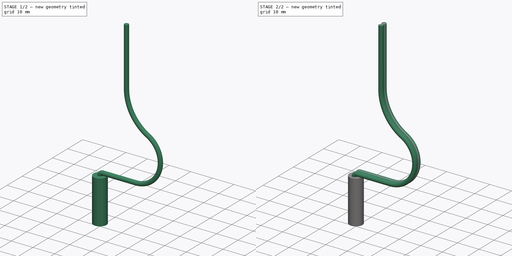
[diagram: build sequence overview — one tinted view per stage of 2, left to right]
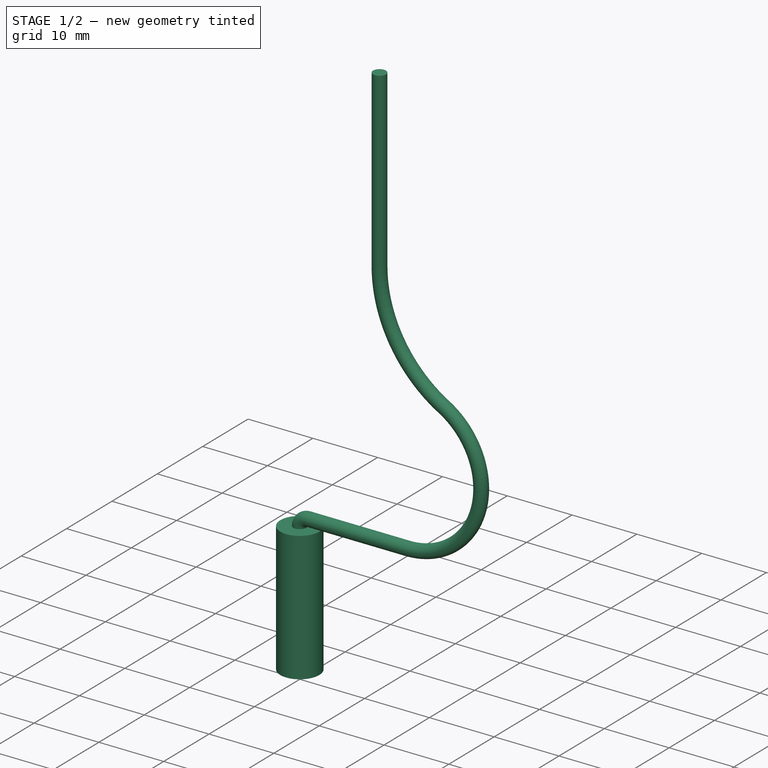
[diagram: stage 1 of 2 — iso view after this stage's code; geometry added in this stage tinted green]
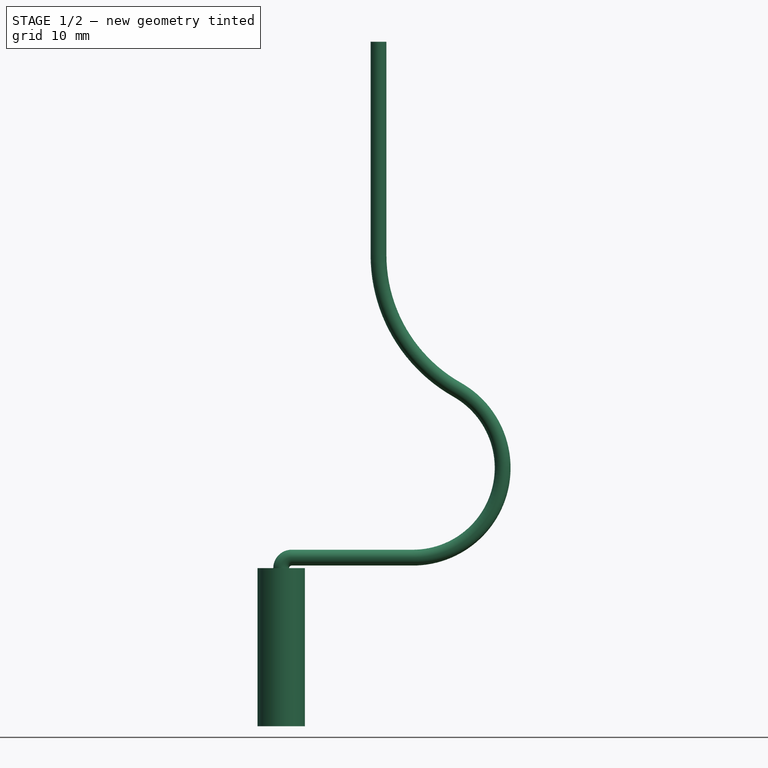
[diagram: stage 1 of 2 — front view after this stage's code; geometry added in this stage tinted green]
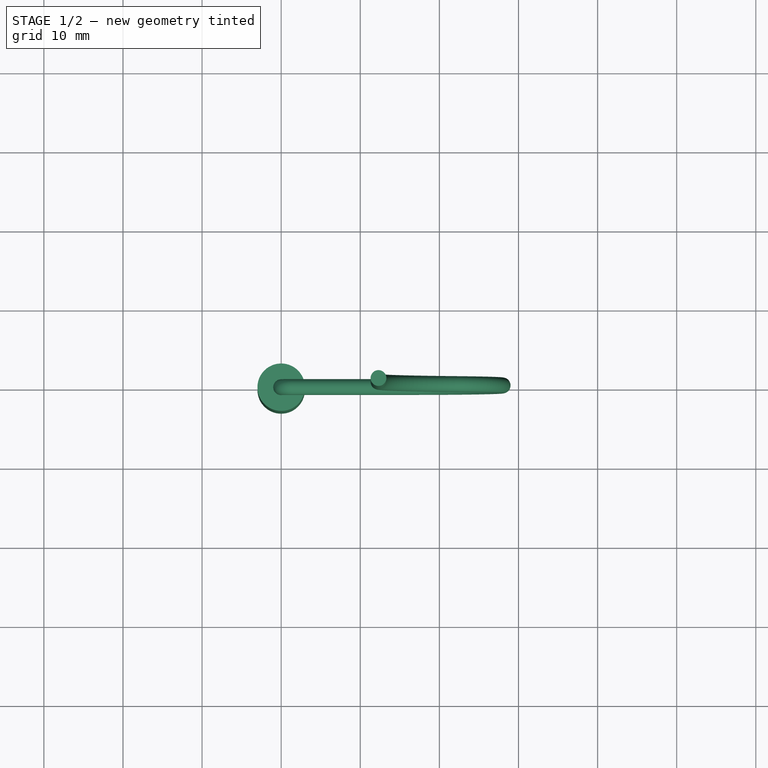
[diagram: stage 1 of 2 — top view after this stage's code; geometry added in this stage tinted green]
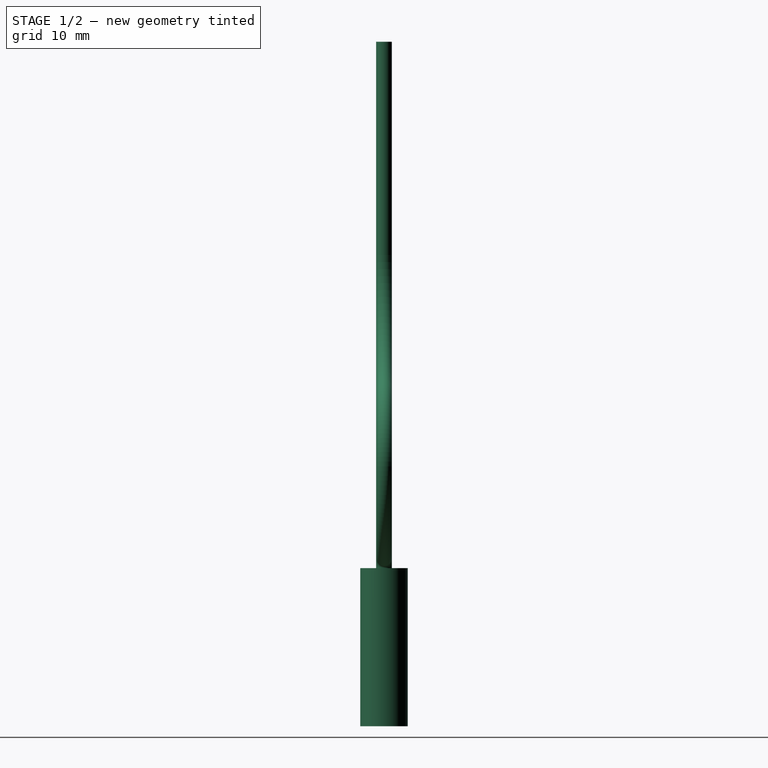
[diagram: stage 1 of 2 — right view after this stage's code; geometry added in this stage tinted green]
FCSTD DOCUMENT  (FreeCAD 0.19R24267 (Git))
Label: heater_cartridge
License: All rights reserved
LicenseURL: http://en.wikipedia.org/wiki/All_rights_reserved
objects: Sketcher::SketchObject×5, PartDesign::Body×3, PartDesign::AdditivePipe×2, PartDesign::Pad×1, PartDesign::Boolean×1, PartDesign::CoordinateSystem×1, App::Part×1
note: 16 computed .brp shape members not serialized (recipe doc carries the construction recipe); baked Part::Feature solids carry a one-line shape summary decoded from their .brp

FEATURE [PartDesign::Body] Body033  label="Body034"
  Group = -> [Sketch087,Sketch088,AdditivePipe003]
  Origin = -> Origin101
  Placement = pos=(0,0.99,0) rot=(0,0,1;0rad)
  Tip = -> AdditivePipe003
FEATURE [Sketcher::SketchObject] Sketch089
  FullyConstrained = false
  MapMode = 5
  Support = -> [XY_Plane102]
  sketch-geometry (1):
    g0: Circle CenterX=0 CenterY=0 CenterZ=0 NormalX=0 NormalY=0 NormalZ=1 AngleXU=0 Radius=1
  constraints (2):
    c: Coincident(g0,g-1)
    c: Diameter(g0) = 2
FEATURE [Sketcher::SketchObject] Sketch090
  FullyConstrained = false
  MapMode = 5
  Placement = pos=(0,0,0) rot=(1,0,0;1.5708rad)
  Support = -> [XZ_Plane102]
  sketch-geometry (5):
    g0: ArcOfCircle CenterX=1.32205 CenterY=0 CenterZ=0 NormalX=0 NormalY=0 NormalZ=1 AngleXU=0 Radius=1.32205 StartAngle=1.5708 EndAngle=3.14159
    g1: LineSegment StartX=1.32205 StartY=1.32205 StartZ=0 EndX=16.6441 EndY=1.32205 EndZ=0
    g2: ArcOfCircle CenterX=16.6441 CenterY=12.6746 CenterZ=0 NormalX=0 NormalY=0 NormalZ=1 AngleXU=0 Radius=11.3525 StartAngle=4.71239 EndAngle=7.33941
    g3: ArcOfCircle CenterX=31.8557 CenterY=39.5797 CenterZ=0 NormalX=0 NormalY=0 NormalZ=1 AngleXU=0 Radius=19.555 StartAngle=3.14159 EndAngle=4.19782
    g4: LineSegment StartX=12.3007 StartY=39.5797 StartZ=0 EndX=12.3007 EndY=66.5454 EndZ=0
  constraints (8):
    c: PointOnObject(g0,g-1)
    c: Coincident(g0,g-1)
    c: Horizontal(g1)
    c: Vertical(g4)
    c: Tangent(g3,g2) = 1.5708
    c: Tangent(g2,g1) = -1.5708
    c: Tangent(g1,g0) = 1.5708
    c: Tangent(g4,g3) = 1.5708
FEATURE [PartDesign::AdditivePipe] AdditivePipe004
  AuxilleryCurvelinear = true
  AuxillerySpineTangent = false
  Binormal = (0,0,0)
  Mode = 2
  Profile = -> Sketch089
  Spine = -> Sketch090
  SpineTangent = false
  Transformation = 0
  Transition = 0
FEATURE [PartDesign::Body] Body034  label="Body035"
  Group = -> [Sketch090,Sketch089,AdditivePipe004]
  Origin = -> Origin102
  Placement = pos=(0,-1.02,0) rot=(0,0,1;0rad)
  Tip = -> AdditivePipe004
FEATURE [Sketcher::SketchObject] Sketch
  FullyConstrained = false
  MapMode = 5
  Support = -> [XY_Plane]
  sketch-geometry (1):
    g0: Circle CenterX=0 CenterY=0 CenterZ=0 NormalX=0 NormalY=0 NormalZ=1 AngleXU=0 Radius=3
  constraints (2):
    c: Coincident(g0,g-1)
    c: Diameter(g0) = 6
FEATURE [PartDesign::Pad] Pad
  Direction = (1,1,1)
  Length = 20
  Length2 = 100
  Profile = -> Sketch
  Reversed = true
  Type = 0
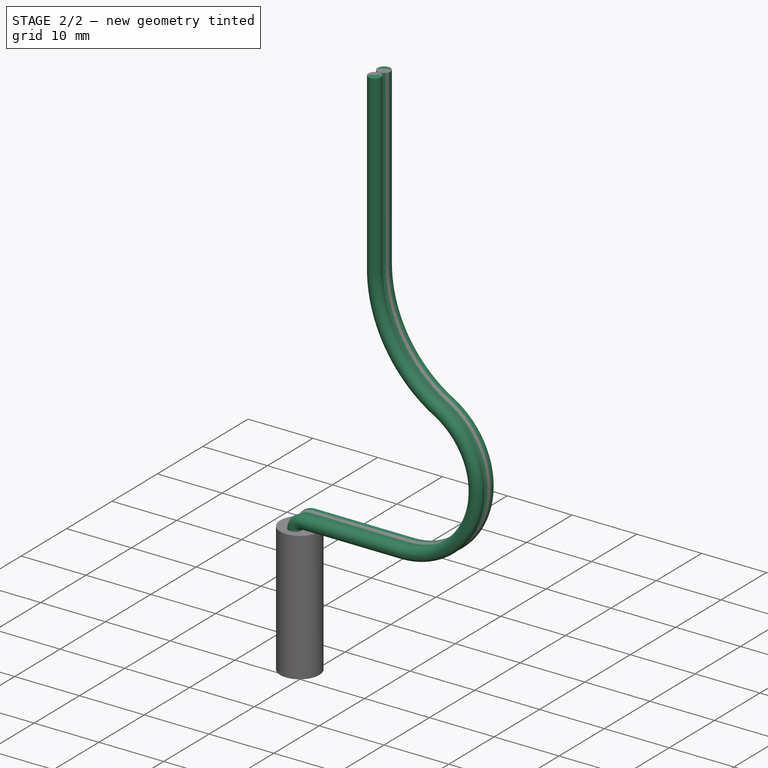
[diagram: stage 2 of 2 — iso view after this stage's code; geometry added in this stage tinted green]
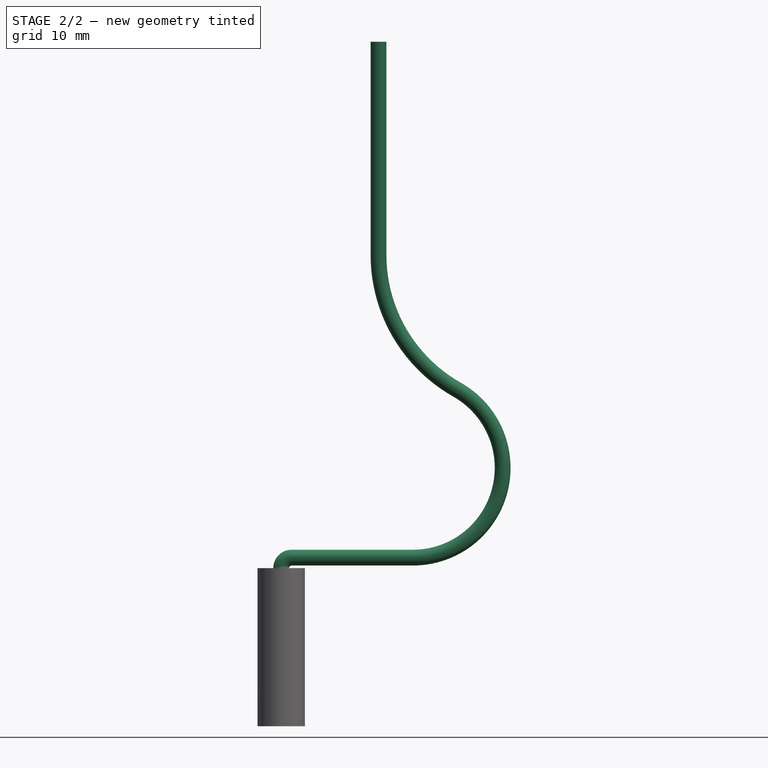
[diagram: stage 2 of 2 — front view after this stage's code; geometry added in this stage tinted green]
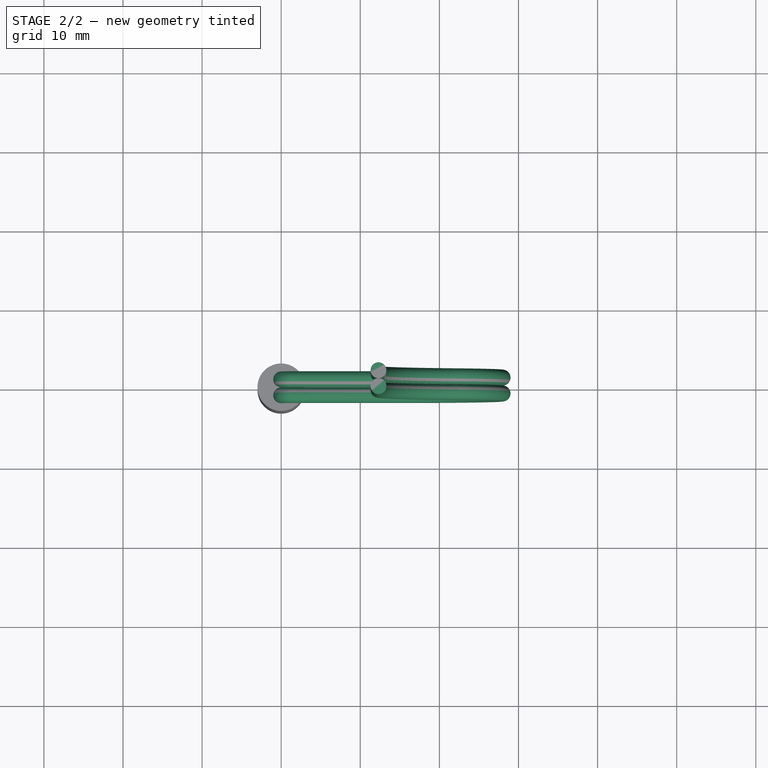
[diagram: stage 2 of 2 — top view after this stage's code; geometry added in this stage tinted green]
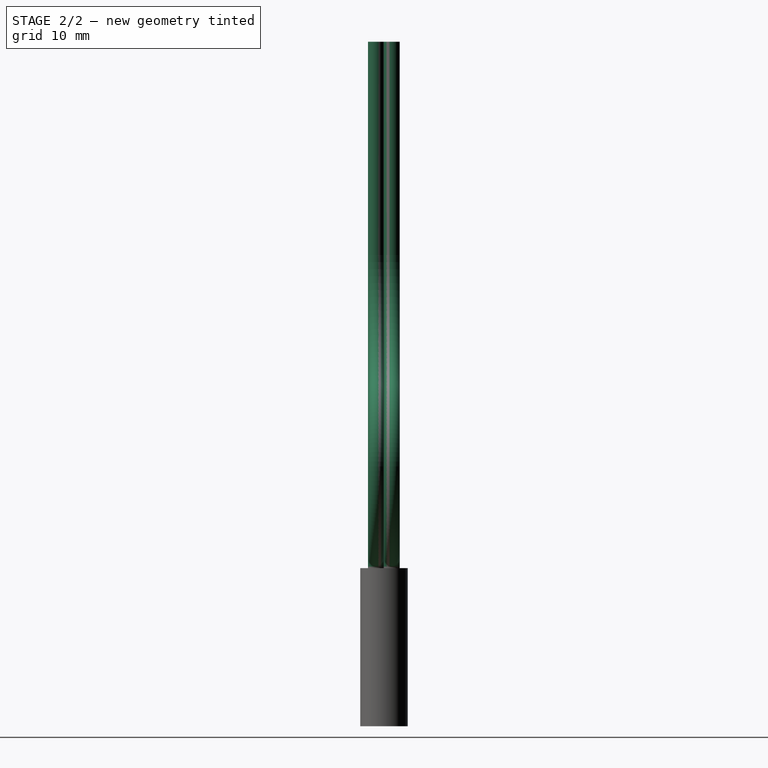
[diagram: stage 2 of 2 — right view after this stage's code; geometry added in this stage tinted green]
FEATURE [Sketcher::SketchObject] Sketch087
  FullyConstrained = false
  MapMode = 5
  Placement = pos=(0,0,0) rot=(1,0,0;1.5708rad)
  Support = -> [XZ_Plane101]
  sketch-geometry (5):
    g0: ArcOfCircle CenterX=1.32205 CenterY=0 CenterZ=0 NormalX=0 NormalY=0 NormalZ=1 AngleXU=0 Radius=1.32205 StartAngle=1.5708 EndAngle=3.14159
    g1: LineSegment StartX=1.32205 StartY=1.32205 StartZ=0 EndX=16.6441 EndY=1.32205 EndZ=0
    g2: ArcOfCircle CenterX=16.6441 CenterY=12.6746 CenterZ=0 NormalX=0 NormalY=0 NormalZ=1 AngleXU=0 Radius=11.3525 StartAngle=4.71239 EndAngle=7.33941
    g3: ArcOfCircle CenterX=31.8557 CenterY=39.5797 CenterZ=0 NormalX=0 NormalY=0 NormalZ=1 AngleXU=0 Radius=19.555 StartAngle=3.14159 EndAngle=4.19782
    g4: LineSegment StartX=12.3007 StartY=39.5797 StartZ=0 EndX=12.3007 EndY=66.5454 EndZ=0
  constraints (8):
    c: PointOnObject(g0,g-1)
    c: Coincident(g0,g-1)
    c: Horizontal(g1)
    c: Vertical(g4)
    c: Tangent(g3,g2) = 1.5708
    c: Tangent(g2,g1) = -1.5708
    c: Tangent(g1,g0) = 1.5708
    c: Tangent(g4,g3) = 1.5708
FEATURE [Sketcher::SketchObject] Sketch088
  FullyConstrained = false
  MapMode = 5
  Support = -> [XY_Plane101]
  sketch-geometry (1):
    g0: Circle CenterX=0 CenterY=0 CenterZ=0 NormalX=0 NormalY=0 NormalZ=1 AngleXU=0 Radius=1
  constraints (2):
    c: Coincident(g0,g-1)
    c: Diameter(g0) = 2
FEATURE [PartDesign::AdditivePipe] AdditivePipe003
  AuxilleryCurvelinear = true
  AuxillerySpineTangent = false
  Binormal = (0,0,0)
  Mode = 2
  Profile = -> Sketch088
  Spine = -> Sketch087
  SpineTangent = false
  Transformation = 0
  Transition = 0
FEATURE [PartDesign::Boolean] Boolean
  BaseFeature = -> Pad
  Group = -> [Body033,Body034]
  Type = 0
FEATURE [PartDesign::Body] Body
  Group = -> [Sketch,Pad,Boolean]
  Origin = -> Origin
  Tip = -> Boolean
FEATURE [PartDesign::CoordinateSystem] LCS_1
  AttacherType = Attacher::AttachEngine3D
  MapMode = 11
  Placement = pos=(0,0,-20) rot=(0,0,1;1.5708rad)
  Support = -> [Boolean]
FEATURE [App::Part] Part049  label="heater_cartridge"
  Group = -> [Body,LCS_1]
  Origin = -> Origin100
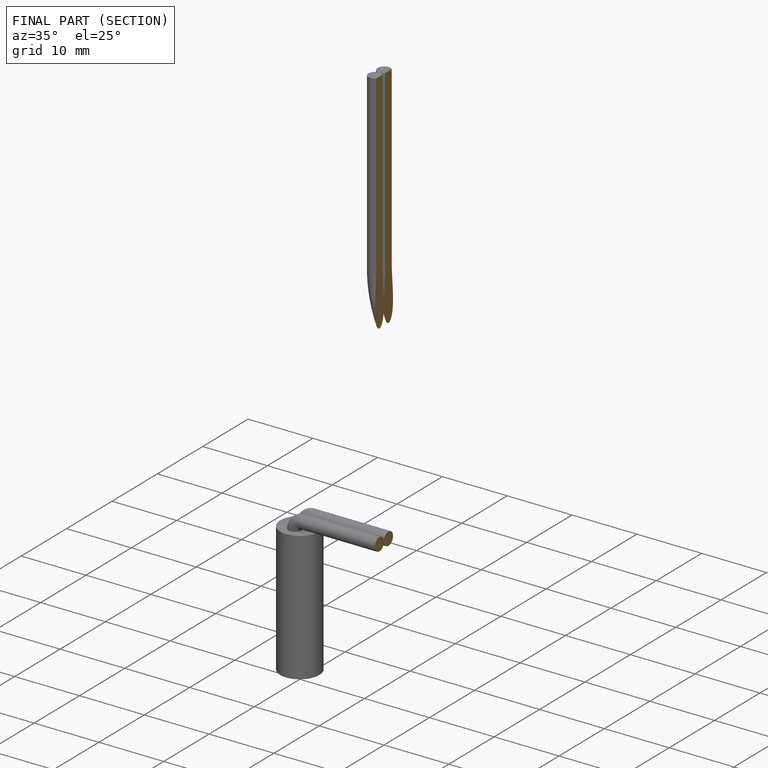
[diagram: finished part — half-section view (interior)]
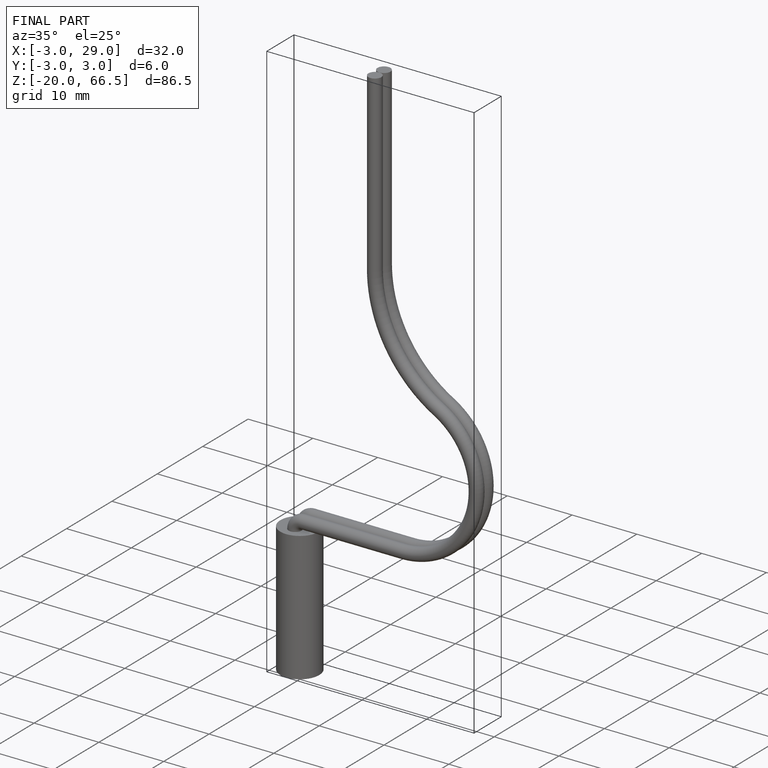
[diagram: finished part — iso view with bounding-box wireframe]
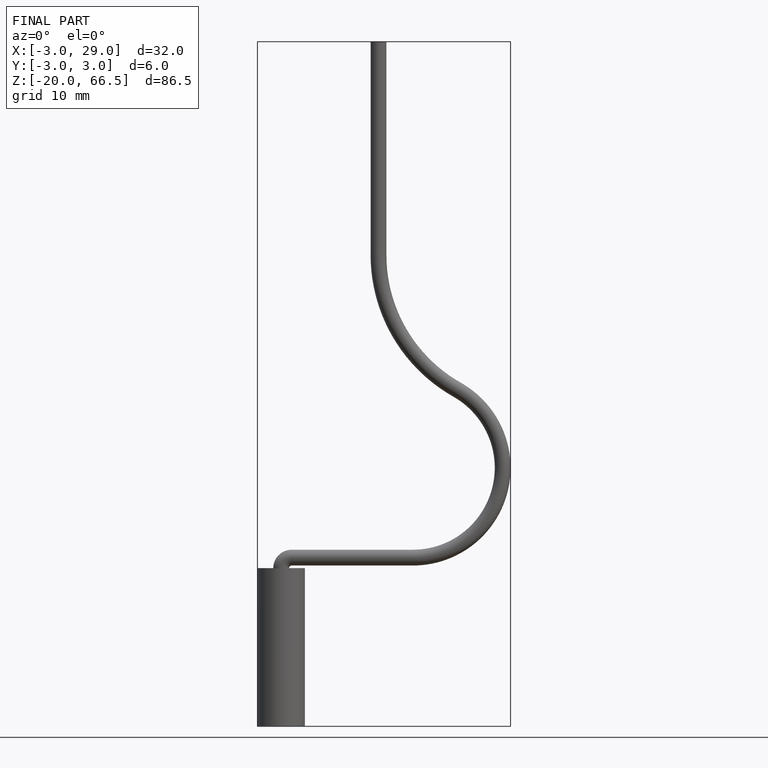
[diagram: finished part — front view with bounding-box wireframe]
